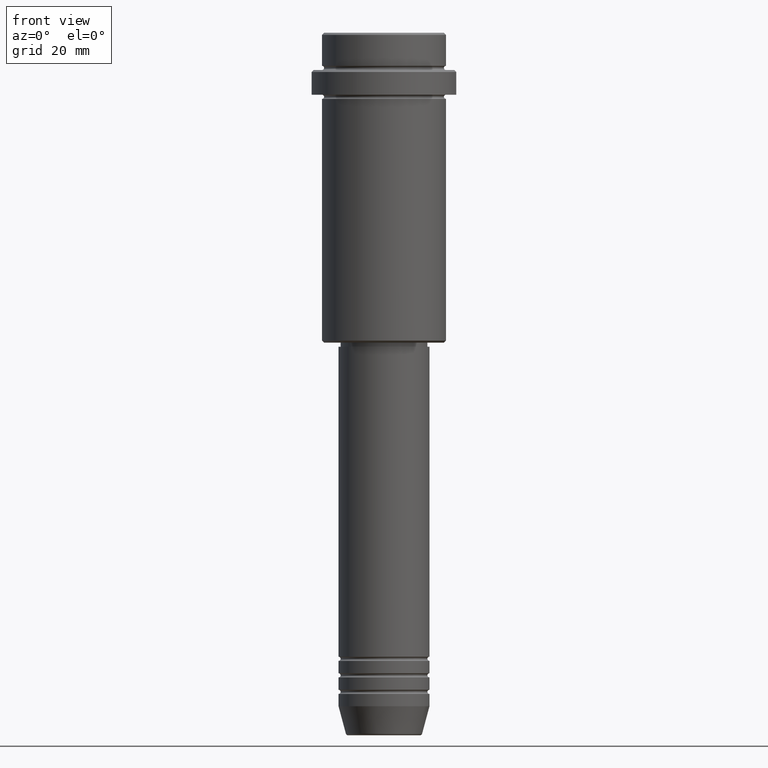
[diagram: clean part render]
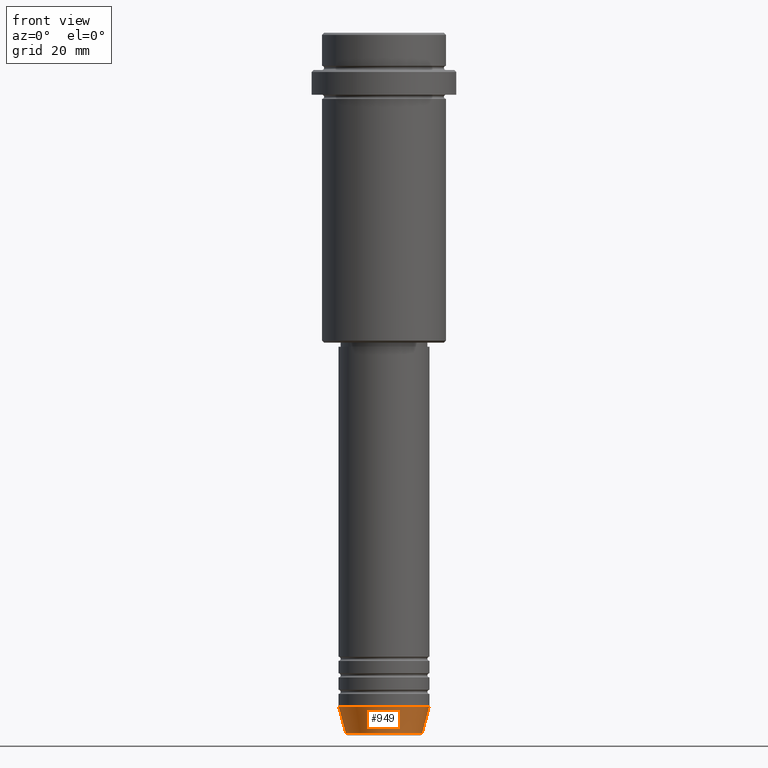
[diagram: same view with one face highlighted and labeled with its STEP entity id]
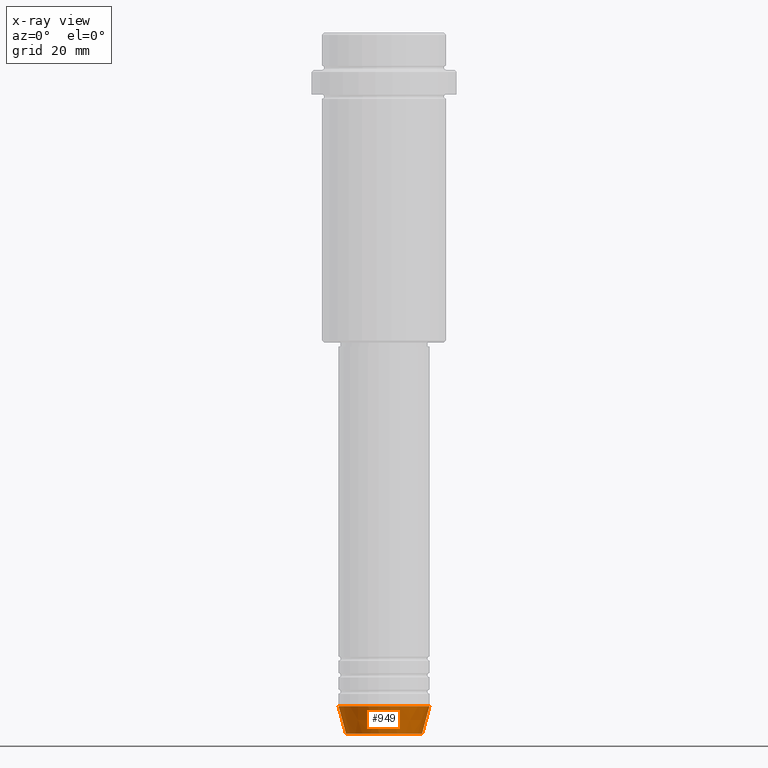
[diagram: x-ray of the same camera — body ghosted, the highlighted face saturated]
A machine part, front view. The second image highlights one B-rep face of the part: STEP entity #949.
The next image is the same camera in x-ray: the body ghosted, the highlighted face saturated — about 0% of this face is hidden behind the body in this view.
In plain terms, the highlighted conical surface has half-angle 15 deg.
Its self-contained STEP definition (entity closure, byte-faithful):
#24 = DIRECTION ( 'NONE',  ( 0.2588190451025213501, 0.000000000000000000, 0.9659258262890680902 ) ) ;
#32 = VERTEX_POINT ( 'NONE', #793 ) ;
#46 = CARTESIAN_POINT ( 'NONE',  ( 0.000000000000000000, 0.000000000000000000, -163.0000000000000000 ) ) ;
#100 = AXIS2_PLACEMENT_3D ( 'NONE', #847, #200, #130 ) ;
#130 = DIRECTION ( 'NONE',  ( 1.000000000000000000, 0.000000000000000000, 0.000000000000000000 ) ) ;
#137 = DIRECTION ( 'NONE',  ( 1.000000000000000000, 0.000000000000000000, 0.000000000000000000 ) ) ;
#200 = DIRECTION ( 'NONE',  ( -0.000000000000000000, -0.000000000000000000, 1.000000000000000000 ) ) ;
#222 = CARTESIAN_POINT ( 'NONE',  ( 0.000000000000000000, 0.000000000000000000, -163.0000000000000000 ) ) ;
#303 = CONICAL_SURFACE ( 'NONE', #1094, 11.00000000000000000, 0.2617993877991500740 ) ;
#310 = DIRECTION ( 'NONE',  ( -0.2588190451025213501, 3.169619151431772337E-17, 0.9659258262890680902 ) ) ;
#478 = VERTEX_POINT ( 'NONE', #1126 ) ;
#487 = CIRCLE ( 'NONE', #100, 9.223655072137189492 ) ;
#497 = DIRECTION ( 'NONE',  ( -0.000000000000000000, -0.000000000000000000, 1.000000000000000000 ) ) ;
#522 = CARTESIAN_POINT ( 'NONE',  ( -11.00000000000000000, 1.347111479062088405E-15, -163.0000000000000000 ) ) ;
#538 = ORIENTED_EDGE ( 'NONE', *, *, #987, .F. ) ;
#552 = VECTOR ( 'NONE', #310, 1000.000000000000000 ) ;
#618 = VECTOR ( 'NONE', #24, 1000.000000000000000 ) ;
#655 = EDGE_CURVE ( 'NONE', #32, #764, #487, .T. ) ;
#764 = VERTEX_POINT ( 'NONE', #880 ) ;
#793 = CARTESIAN_POINT ( 'NONE',  ( -9.223655072137189492, 1.238341722557647202E-15, -169.6294095225512706 ) ) ;
#825 = EDGE_LOOP ( 'NONE', ( #1080, #1251, #1016, #538 ) ) ;
#835 = LINE ( 'NONE', #522, #552 ) ;
#847 = CARTESIAN_POINT ( 'NONE',  ( 0.000000000000000000, 0.000000000000000000, -169.6294095225512706 ) ) ;
#868 = FACE_OUTER_BOUND ( 'NONE', #825, .T. ) ;
#880 = CARTESIAN_POINT ( 'NONE',  ( 9.223655072137189492, 0.000000000000000000, -169.6294095225512706 ) ) ;
#921 = LINE ( 'NONE', #1084, #618 ) ;
#949 = ADVANCED_FACE ( 'NONE', ( #868 ), #303, .T. ) ;
#987 = EDGE_CURVE ( 'NONE', #1247, #478, #1022, .T. ) ;
#1015 = EDGE_CURVE ( 'NONE', #32, #1247, #835, .T. ) ;
#1016 = ORIENTED_EDGE ( 'NONE', *, *, #1118, .T. ) ;
#1022 = CIRCLE ( 'NONE', #1142, 11.00000000000000000 ) ;
#1080 = ORIENTED_EDGE ( 'NONE', *, *, #1015, .F. ) ;
#1084 = CARTESIAN_POINT ( 'NONE',  ( 11.00000000000000000, 0.000000000000000000, -163.0000000000000000 ) ) ;
#1094 = AXIS2_PLACEMENT_3D ( 'NONE', #222, #1309, #137 ) ;
#1118 = EDGE_CURVE ( 'NONE', #764, #478, #921, .T. ) ;
#1126 = CARTESIAN_POINT ( 'NONE',  ( 11.00000000000000000, 0.000000000000000000, -163.0000000000000000 ) ) ;
#1142 = AXIS2_PLACEMENT_3D ( 'NONE', #46, #497, #1253 ) ;
#1240 = CARTESIAN_POINT ( 'NONE',  ( -11.00000000000000000, 1.347111479062088405E-15, -163.0000000000000000 ) ) ;
#1247 = VERTEX_POINT ( 'NONE', #1240 ) ;
#1251 = ORIENTED_EDGE ( 'NONE', *, *, #655, .T. ) ;
#1253 = DIRECTION ( 'NONE',  ( 1.000000000000000000, 0.000000000000000000, 0.000000000000000000 ) ) ;
#1309 = DIRECTION ( 'NONE',  ( -0.000000000000000000, -0.000000000000000000, 1.000000000000000000 ) ) ;